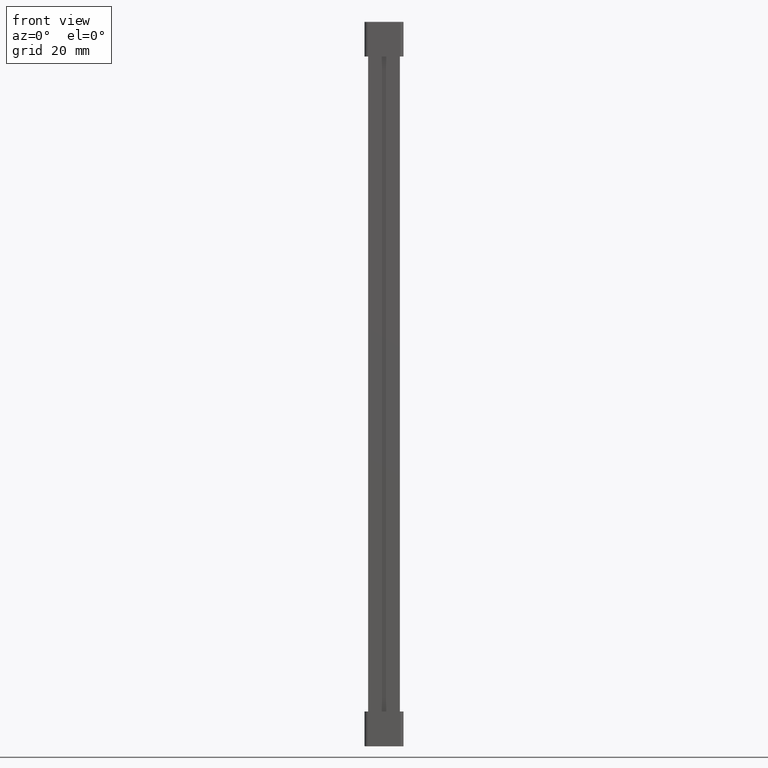
[diagram: clean part render]
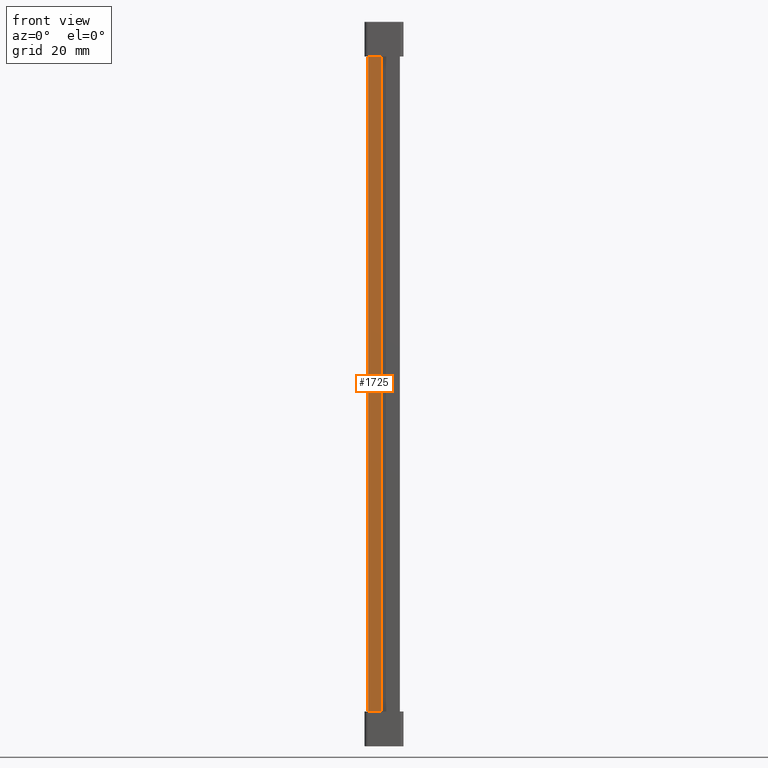
[diagram: same view with one face highlighted and labeled with its STEP entity id]
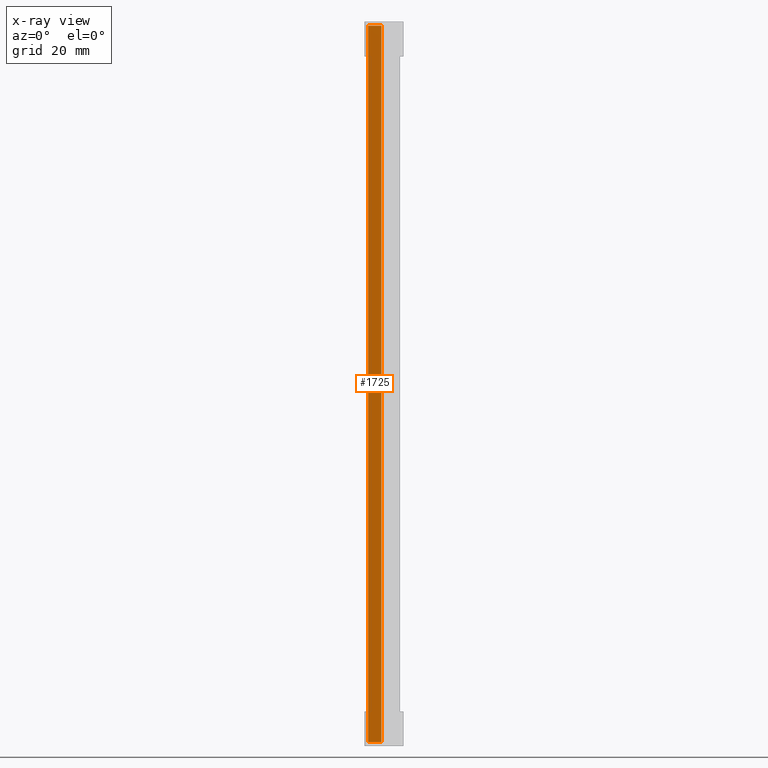
[diagram: x-ray of the same camera — body ghosted, the highlighted face saturated]
A machine part, front view. The second image highlights one B-rep face of the part: STEP entity #1725.
The next image is the same camera in x-ray: the body ghosted, the highlighted face saturated — about 0% of this face is hidden behind the body in this view.
In plain terms, the highlighted planar face has unit normal (0, 1, 0).
Its self-contained STEP definition (entity closure, byte-faithful):
#15 = CARTESIAN_POINT ( 'NONE',  ( 0.002392569305468024800, 0.0000000000000000000, 217.7999677721844000 ) ) ;
#1725 = ADVANCED_FACE ( 'NONE', ( #15098 ), #15082, .F. ) ;
#2087 = EDGE_CURVE ( 'NONE', #17516, #17491, #9255, .T. ) ;
#2092 = EDGE_CURVE ( 'NONE', #17491, #17527, #2466, .T. ) ;
#2120 = EDGE_CURVE ( 'NONE', #17422, #17549, #2566, .T. ) ;
#2133 = EDGE_CURVE ( 'NONE', #17549, #17438, #2569, .T. ) ;
#2139 = EDGE_CURVE ( 'NONE', #17527, #17438, #9241, .T. ) ;
#2147 = EDGE_CURVE ( 'NONE', #17516, #17422, #2613, .T. ) ;
#2457 = DIRECTION ( 'NONE',  ( 0.0000000000000000000, 0.0000000000000000000, -1.000000000000000000 ) ) ;
#2459 = CARTESIAN_POINT ( 'NONE',  ( 0.0000000000000000000, -1.011343786494478500E-012, 219.0000000000000000 ) ) ;
#2466 = LINE ( 'NONE', #2459, #19152 ) ;
#2548 = CARTESIAN_POINT ( 'NONE',  ( 4.000000000000447600, 0.0000000000000000000, 219.0000000000000000 ) ) ;
#2558 = DIRECTION ( 'NONE',  ( -0.0000000000000000000, 0.0000000000000000000, -1.000000000000000000 ) ) ;
#2566 = LINE ( 'NONE', #2548, #19163 ) ;
#2569 = LINE ( 'NONE', #2571, #19192 ) ;
#2571 = CARTESIAN_POINT ( 'NONE',  ( 0.0000000000000000000, 0.0000000000000000000, 1.200000000002775500 ) ) ;
#2594 = CARTESIAN_POINT ( 'NONE',  ( 0.004786227570872112300, 0.0000000000000000000, 1.200000000000634300 ) ) ;
#2599 = CARTESIAN_POINT ( 'NONE',  ( 0.007179677194518494800, -8.131516293641283300E-017, 1.199999999999997700 ) ) ;
#2603 = CARTESIAN_POINT ( 'NONE',  ( -8.723480390052733600E-009, -5.056718932472392700E-013, 1.200096925459736900 ) ) ;
#2613 = LINE ( 'NONE', #2678, #19517 ) ;
#2626 = CARTESIAN_POINT ( 'NONE',  ( 0.002392557610577274500, 2.825059692677028200E-010, 1.200032228253065800 ) ) ;
#2629 = DIRECTION ( 'NONE',  ( -1.000000000000000000, -0.0000000000000000000, 0.0000000000000000000 ) ) ;
#2640 = DIRECTION ( 'NONE',  ( 1.000000000000000000, 0.0000000000000000000, -0.0000000000000000000 ) ) ;
#2678 = CARTESIAN_POINT ( 'NONE',  ( 0.0000000000000000000, 0.0000000000000000000, 217.7999999999999800 ) ) ;
#7577 = CARTESIAN_POINT ( 'NONE',  ( 0.007179677250525842000, 6.017322057294546500E-015, 217.8000000000000700 ) ) ;
#8528 = CARTESIAN_POINT ( 'NONE',  ( 0.004786233454916699800, -6.162975822039154700E-030, 217.8000000000000700 ) ) ;
#9241 = B_SPLINE_CURVE_WITH_KNOTS ( 'NONE', 3,
 ( #2603, #2626, #2594, #2599 ),
 .UNSPECIFIED., .F., .F.,
 ( 4, 4 ),
 ( 8.707930950794583900E-012, 7.180348840950877300E-006 ),
 .UNSPECIFIED. ) ;
#9255 = B_SPLINE_CURVE_WITH_KNOTS ( 'NONE', 3,
 ( #7577, #8528, #15, #18765 ),
 .UNSPECIFIED., .F., .F.,
 ( 4, 4 ),
 ( 1.034481338481677000E-017, 7.180331452527941100E-006 ),
 .UNSPECIFIED. ) ;
#12166 = EDGE_LOOP ( 'NONE', ( #17751, #17770, #17738, #17767, #17680, #17664 ) ) ;
#15082 = PLANE ( 'NONE',  #19612 ) ;
#15085 = DIRECTION ( 'NONE',  ( 0.0000000000000000000, 1.000000000000000000, 0.0000000000000000000 ) ) ;
#15098 = FACE_OUTER_BOUND ( 'NONE', #12166, .T. ) ;
#15099 = DIRECTION ( 'NONE',  ( 0.0000000000000000000, -0.0000000000000000000, 1.000000000000000000 ) ) ;
#15106 = CARTESIAN_POINT ( 'NONE',  ( 0.0000000000000000000, 0.0000000000000000000, 219.0000000000000000 ) ) ;
#17422 = VERTEX_POINT ( 'NONE', #20422 ) ;
#17438 = VERTEX_POINT ( 'NONE', #20398 ) ;
#17491 = VERTEX_POINT ( 'NONE', #20436 ) ;
#17516 = VERTEX_POINT ( 'NONE', #20444 ) ;
#17527 = VERTEX_POINT ( 'NONE', #20480 ) ;
#17549 = VERTEX_POINT ( 'NONE', #20482 ) ;
#17664 = ORIENTED_EDGE ( 'NONE', *, *, #2087, .T. ) ;
#17680 = ORIENTED_EDGE ( 'NONE', *, *, #2147, .F. ) ;
#17738 = ORIENTED_EDGE ( 'NONE', *, *, #2133, .F. ) ;
#17751 = ORIENTED_EDGE ( 'NONE', *, *, #2092, .T. ) ;
#17767 = ORIENTED_EDGE ( 'NONE', *, *, #2120, .F. ) ;
#17770 = ORIENTED_EDGE ( 'NONE', *, *, #2139, .T. ) ;
#18765 = CARTESIAN_POINT ( 'NONE',  ( 0.0000000000000000000, -3.301970112851926600E-012, 217.7999030755640600 ) ) ;
#19152 = VECTOR ( 'NONE', #2457, 1000.000000000000000 ) ;
#19163 = VECTOR ( 'NONE', #2558, 1000.000000000000000 ) ;
#19192 = VECTOR ( 'NONE', #2629, 1000.000000000000000 ) ;
#19517 = VECTOR ( 'NONE', #2640, 1000.000000000000000 ) ;
#19612 = AXIS2_PLACEMENT_3D ( 'NONE', #15106, #15085, #15099 ) ;
#20398 = CARTESIAN_POINT ( 'NONE',  ( 0.007179677194518494800, -8.131516293641283300E-017, 1.199999999999997700 ) ) ;
#20422 = CARTESIAN_POINT ( 'NONE',  ( 4.000000000000447600, 0.0000000000000000000, 217.7999999999999800 ) ) ;
#20436 = CARTESIAN_POINT ( 'NONE',  ( 0.0000000000000000000, -3.301970112851926600E-012, 217.7999030755640600 ) ) ;
#20444 = CARTESIAN_POINT ( 'NONE',  ( 0.007179677250525842000, 6.017322057294546500E-015, 217.8000000000000700 ) ) ;
#20480 = CARTESIAN_POINT ( 'NONE',  ( -8.723480390052733600E-009, -5.056718932472392700E-013, 1.200096925459736900 ) ) ;
#20482 = CARTESIAN_POINT ( 'NONE',  ( 4.000000000000447600, 0.0000000000000000000, 1.200000000002773100 ) ) ;